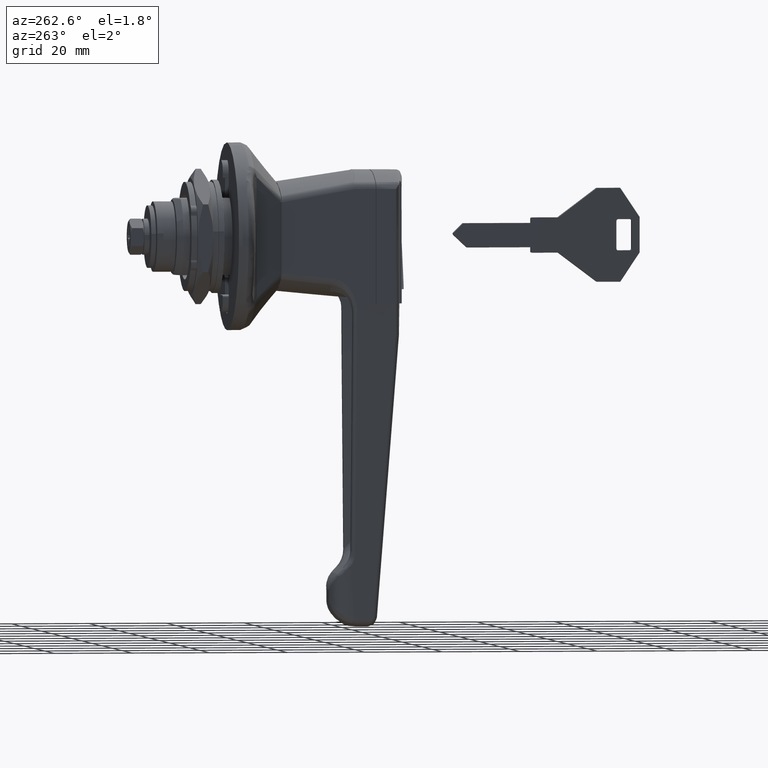
[diagram: clean part render]
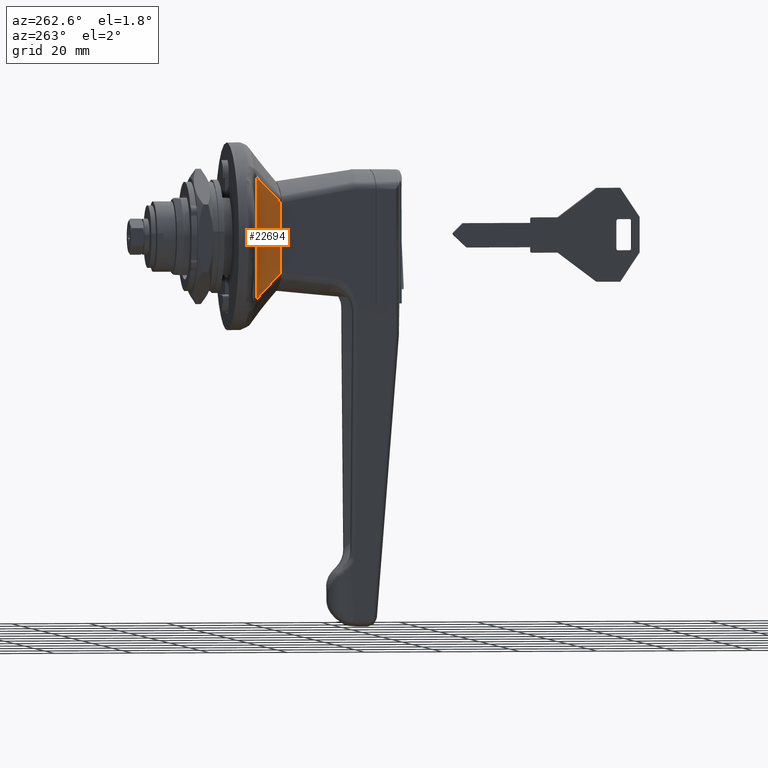
[diagram: same view with one face highlighted and labeled with its STEP entity id]
A machine part, auxiliary view. The second image highlights one B-rep face of the part: STEP entity #22694.
In plain terms, the highlighted face is a freeform B-spline surface patch.
Its self-contained STEP definition (entity closure, byte-faithful):
#19647=CARTESIAN_POINT('',(-12.151465753258940,12.631430169102559,9.125446080195161));
#19648=VERTEX_POINT('',#19647);
#19863=CARTESIAN_POINT('',(-12.151465753259361,12.631430169102400,-9.125446080229700));
#19864=VERTEX_POINT('',#19863);
#19886=CARTESIAN_POINT('',(-12.151465753259361,12.631430169102400,-9.125446080229700));
#19887=CARTESIAN_POINT('',(-12.151465753258940,12.631430169102559,9.125446080195161));
#19888=QUASI_UNIFORM_CURVE('',1,(#19886,#19887),.UNSPECIFIED.,.F.,.U.);
#19889=EDGE_CURVE('',#19864,#19648,#19888,.T.);
#22007=CARTESIAN_POINT('',(-5.694136986960110,15.474279313539551,15.576101971889599));
#22008=VERTEX_POINT('',#22007);
#22067=CARTESIAN_POINT('',(-5.694136986968970,15.474279313535650,-15.576101971781350));
#22068=VERTEX_POINT('',#22067);
#22082=CARTESIAN_POINT('',(-5.694136986960110,15.474279313539551,15.576101971889599));
#22083=CARTESIAN_POINT('',(-5.694136986968970,15.474279313535650,-15.576101971781350));
#22084=QUASI_UNIFORM_CURVE('',1,(#22082,#22083),.UNSPECIFIED.,.F.,.U.);
#22085=EDGE_CURVE('',#22008,#22068,#22084,.T.);
#22545=CARTESIAN_POINT('',(-5.694136986968972,15.474279313535620,-15.576101971781361));
#22546=CARTESIAN_POINT('',(-7.850578461951345,14.524902562861699,-13.430666412550410));
#22547=CARTESIAN_POINT('',(-10.004002852795230,13.576854088224550,-11.281606998765170));
#22548=CARTESIAN_POINT('',(-12.151465753259350,12.631430169102380,-9.125446080229715));
#22549=QUASI_UNIFORM_CURVE('',3,(#22545,#22546,#22547,#22548),.UNSPECIFIED.,.F.,.U.);
#22550=EDGE_CURVE('',#22068,#19864,#22549,.T.);
#22595=CARTESIAN_POINT('',(-12.151465753258940,12.631430169102551,9.125446080195157));
#22596=CARTESIAN_POINT('',(-10.004003425374140,13.576853836145769,11.281606424020181));
#22597=CARTESIAN_POINT('',(-7.850577619201653,14.524902933883579,13.430667251183239));
#22598=CARTESIAN_POINT('',(-5.694136986960104,15.474279313539521,15.576101971889610));
#22599=QUASI_UNIFORM_CURVE('',3,(#22595,#22596,#22597,#22598),.UNSPECIFIED.,.F.,.U.);
#22600=EDGE_CURVE('',#19648,#22008,#22599,.T.);
#22683=CARTESIAN_POINT('',(-12.474008888302960,12.489430046654171,-17.132154790823300));
#22684=CARTESIAN_POINT('',(-5.371593274586299,15.616279690158249,-17.132154790823300));
#22685=CARTESIAN_POINT('',(-12.474008888302960,12.489430046654160,17.132155347976369));
#22686=CARTESIAN_POINT('',(-5.371593274586297,15.616279690158240,17.132155347976369));
#22687=B_SPLINE_SURFACE_WITH_KNOTS('',1,1,((#22683,#22685),(#22684,#22686)),.UNSPECIFIED.,.F.,.F.,.U.,(2,2),(2,2),(0.0,7.760251042527414),(0.0,34.264310138799672),.UNSPECIFIED.);
#22688=ORIENTED_EDGE('',*,*,#22550,.T.);
#22689=ORIENTED_EDGE('',*,*,#19889,.T.);
#22690=ORIENTED_EDGE('',*,*,#22600,.T.);
#22691=ORIENTED_EDGE('',*,*,#22085,.T.);
#22692=EDGE_LOOP('',(#22688,#22689,#22690,#22691));
#22693=FACE_OUTER_BOUND('',#22692,.T.);
#22694=ADVANCED_FACE('',(#22693),#22687,.F.);